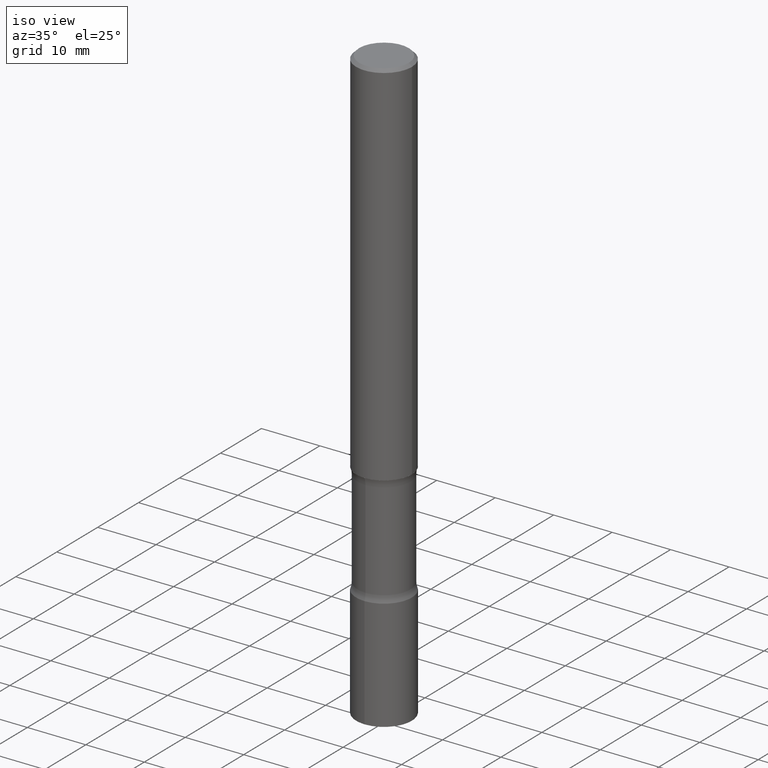
[diagram: clean part render]
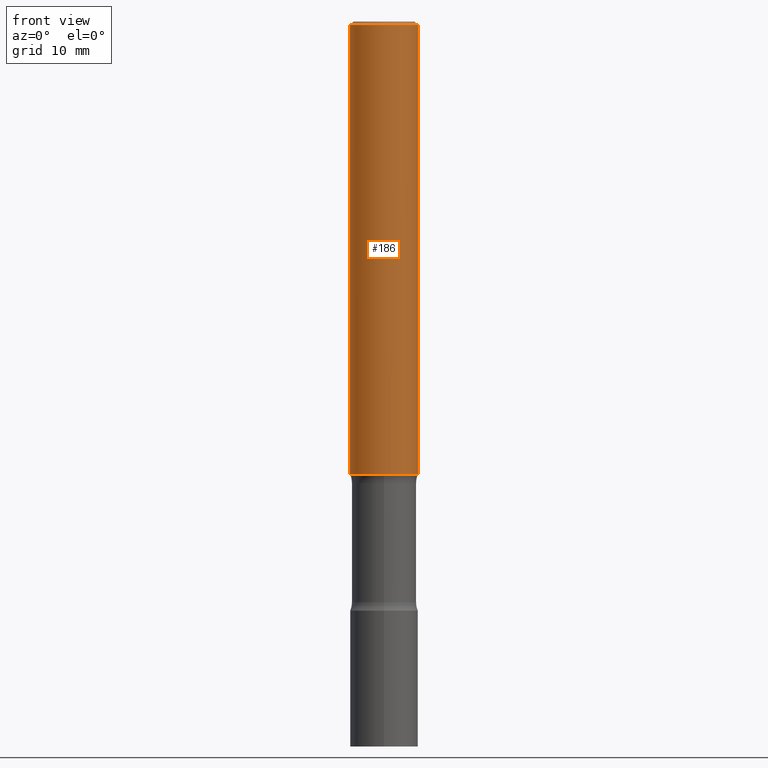
[diagram: tour spotlight — one face highlighted and labeled with its STEP entity id]
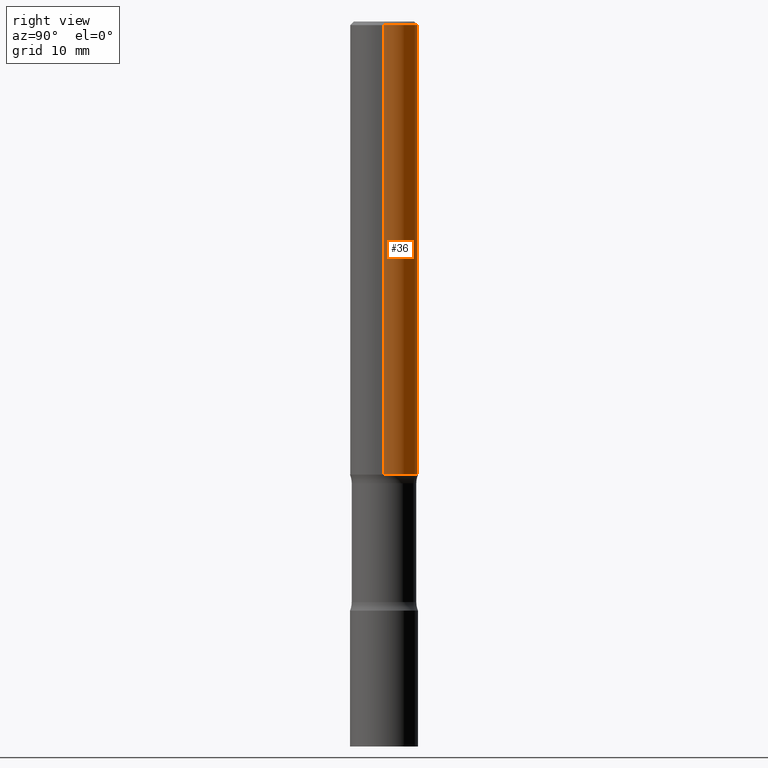
[diagram: tour spotlight — one face highlighted and labeled with its STEP entity id]
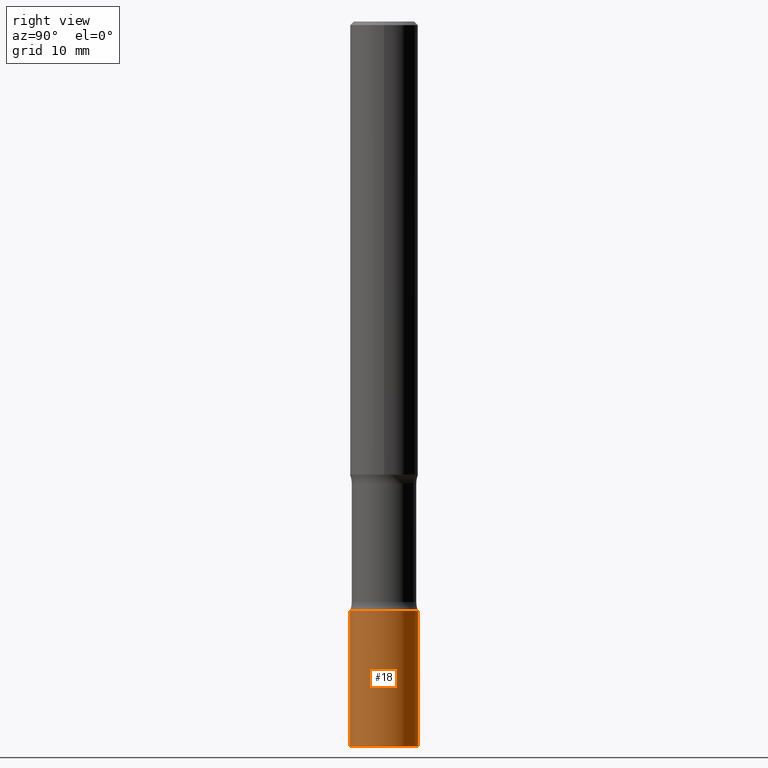
[diagram: tour spotlight — one face highlighted and labeled with its STEP entity id]
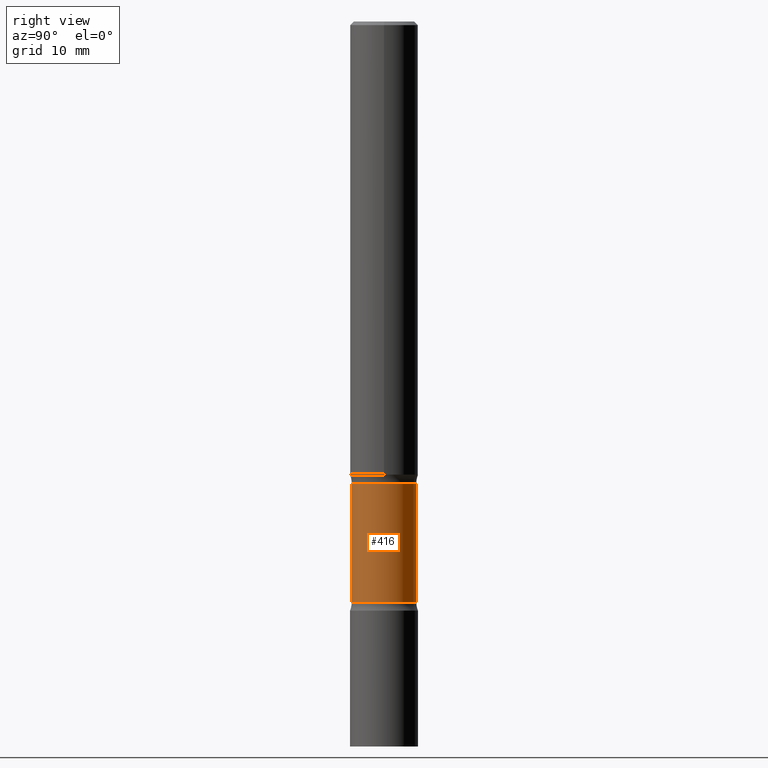
[diagram: tour spotlight — one face highlighted and labeled with its STEP entity id]
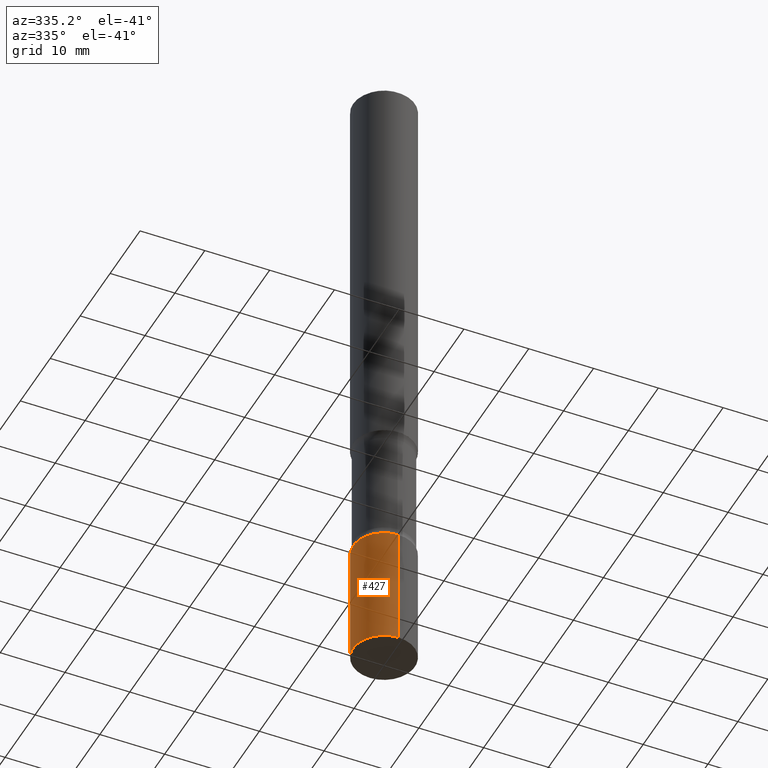
[diagram: tour spotlight — one face highlighted and labeled with its STEP entity id]
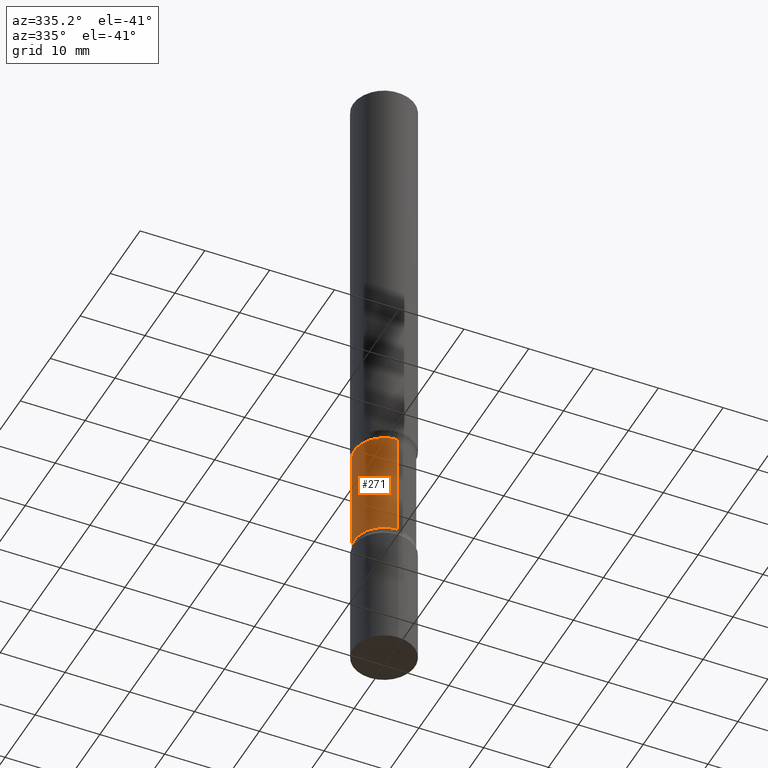
[diagram: tour spotlight — one face highlighted and labeled with its STEP entity id]
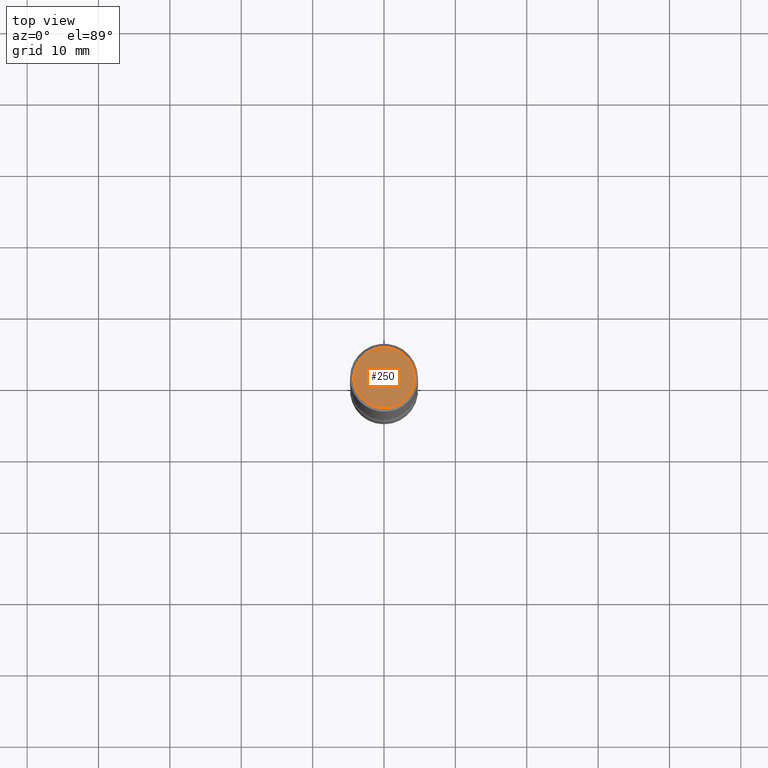
[diagram: tour spotlight — one face highlighted and labeled with its STEP entity id]
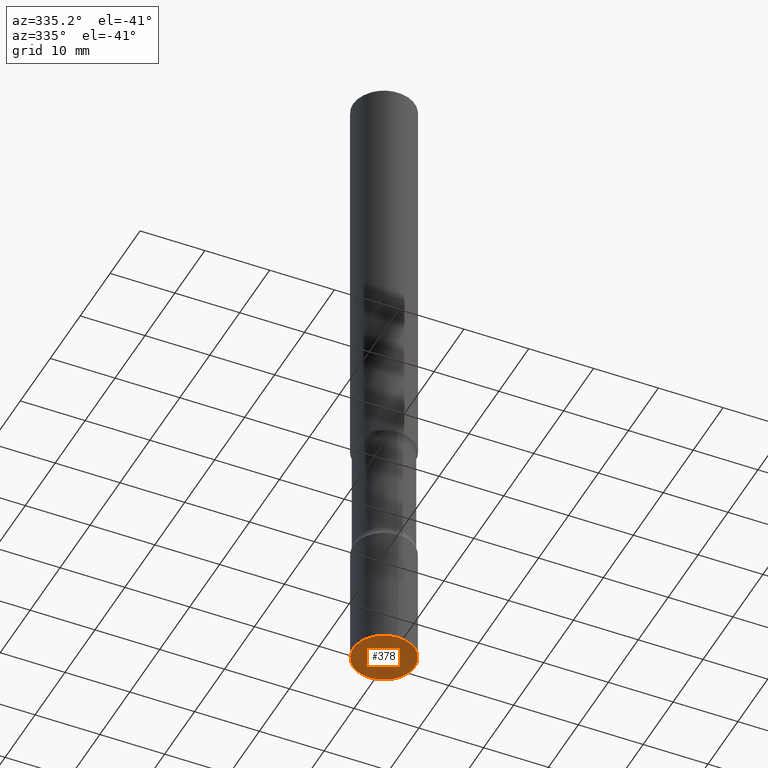
[diagram: tour spotlight — one face highlighted and labeled with its STEP entity id]
A machine part: a face-by-face anatomy tour. The part has 18 B-rep faces; the first image is the clean iso view, then the 8 largest visible faces are spotlighted one at a time (largest first), each with its STEP entity span.

Face 1 — front view, entity #186. In plain terms, the highlighted cylindrical surface (edge-blend (fillet) strip) has radius 4.7625 mm, axis along (-0, 0, 1).
Definition (entity closure, byte-faithful):
#9 = VERTEX_POINT ( 'NONE', #383 ) ;
#15 = ORIENTED_EDGE ( 'NONE', *, *, #421, .T. ) ;
#26 = ORIENTED_EDGE ( 'NONE', *, *, #214, .F. ) ;
#41 = CARTESIAN_POINT ( 'NONE',  ( 0.000000000000000000, 0.000000000000000000, 0.000000000000000000 ) ) ;
#56 = EDGE_CURVE ( 'NONE', #246, #121, #322, .T. ) ;
#58 = CARTESIAN_POINT ( 'NONE',  ( 0.1874999999999999167, -1.309305502066174219E-15, 9.142831454617375408E-30 ) ) ;
#75 = CYLINDRICAL_SURFACE ( 'NONE', #99, 0.1874999999999999167 ) ;
#99 = AXIS2_PLACEMENT_3D ( 'NONE', #41, #137, #441 ) ;
#105 = VECTOR ( 'NONE', #132, 39.37007874015748143 ) ;
#118 = CARTESIAN_POINT ( 'NONE',  ( -0.1874999999999999167, 1.332267629550187257E-15, -9.223003294227943787E-30 ) ) ;
#121 = VERTEX_POINT ( 'NONE', #457 ) ;
#132 = DIRECTION ( 'NONE',  ( -2.445468806185136877E-29, 3.491481338843145188E-15, 1.000000000000000000 ) ) ;
#137 = DIRECTION ( 'NONE',  ( -2.445468806185136597E-29, 3.491481338843145583E-15, 1.000000000000000000 ) ) ;
#142 = DIRECTION ( 'NONE',  ( -2.445468806185136597E-29, 3.491481338843145583E-15, 1.000000000000000000 ) ) ;
#159 = DIRECTION ( 'NONE',  ( -2.445468806185136597E-29, 3.491481338843145583E-15, 1.000000000000000000 ) ) ;
#170 = LINE ( 'NONE', #58, #105 ) ;
#186 = ADVANCED_FACE ( 'NONE', ( #259 ), #75, .T. ) ;
#193 = ORIENTED_EDGE ( 'NONE', *, *, #266, .F. ) ;
#205 = ORIENTED_EDGE ( 'NONE', *, *, #56, .T. ) ;
#214 = EDGE_CURVE ( 'NONE', #9, #476, #480, .T. ) ;
#231 = DIRECTION ( 'NONE',  ( 1.000000000000000000, -6.982962677686266711E-15, 0.000000000000000000 ) ) ;
#246 = VERTEX_POINT ( 'NONE', #382 ) ;
#253 = EDGE_LOOP ( 'NONE', ( #193, #205, #15, #26 ) ) ;
#259 = FACE_OUTER_BOUND ( 'NONE', #253, .T. ) ;
#266 = EDGE_CURVE ( 'NONE', #246, #9, #343, .T. ) ;
#311 = DIRECTION ( 'NONE',  ( -2.445468806185136877E-29, 3.491481338843145188E-15, 1.000000000000000000 ) ) ;
#322 = CIRCLE ( 'NONE', #344, 0.1875000000000000278 ) ;
#343 = LINE ( 'NONE', #118, #393 ) ;
#344 = AXIS2_PLACEMENT_3D ( 'NONE', #369, #142, #491 ) ;
#359 = CARTESIAN_POINT ( 'NONE',  ( 0.1874999999999998057, -1.356173001359023691E-15, -0.02000000000000000042 ) ) ;
#369 = CARTESIAN_POINT ( 'NONE',  ( 6.113672015462842613E-29, -8.728703347107864943E-15, -2.500000000000000000 ) ) ;
#375 = AXIS2_PLACEMENT_3D ( 'NONE', #388, #159, #231 ) ;
#382 = CARTESIAN_POINT ( 'NONE',  ( -0.1874999999999999722, -3.066998857392173905E-15, -2.500000000000000000 ) ) ;
#383 = CARTESIAN_POINT ( 'NONE',  ( -0.1874999999999998057, 1.239475875289310724E-15, -0.02000000000000000042 ) ) ;
#388 = CARTESIAN_POINT ( 'NONE',  ( 4.890937612370273159E-31, -6.982962677686291609E-17, -0.02000000000000000042 ) ) ;
#393 = VECTOR ( 'NONE', #311, 39.37007874015748143 ) ;
#421 = EDGE_CURVE ( 'NONE', #121, #476, #170, .T. ) ;
#441 = DIRECTION ( 'NONE',  ( 1.000000000000000000, -6.982962677686265922E-15, 4.876176775795935793E-29 ) ) ;
#457 = CARTESIAN_POINT ( 'NONE',  ( 0.1875000000000000278, -1.003800884917403995E-14, -2.500000000000000000 ) ) ;
#476 = VERTEX_POINT ( 'NONE', #359 ) ;
#480 = CIRCLE ( 'NONE', #375, 0.1874999999999998057 ) ;
#491 = DIRECTION ( 'NONE',  ( 1.000000000000000000, -6.982962677686266711E-15, 0.000000000000000000 ) ) ;

Face 2 — right view, entity #36. In plain terms, the highlighted cylindrical surface (edge-blend (fillet) strip) has radius 4.7625 mm, axis along (-0, 0, 1).
Definition (entity closure, byte-faithful):
#9 = VERTEX_POINT ( 'NONE', #383 ) ;
#16 = AXIS2_PLACEMENT_3D ( 'NONE', #223, #449, #39 ) ;
#36 = ADVANCED_FACE ( 'NONE', ( #286 ), #292, .T. ) ;
#39 = DIRECTION ( 'NONE',  ( 1.000000000000000000, -6.982962677686266711E-15, 0.000000000000000000 ) ) ;
#58 = CARTESIAN_POINT ( 'NONE',  ( 0.1874999999999999167, -1.309305502066174219E-15, 9.142831454617375408E-30 ) ) ;
#84 = ORIENTED_EDGE ( 'NONE', *, *, #266, .T. ) ;
#89 = DIRECTION ( 'NONE',  ( -2.445468806185136597E-29, 3.491481338843145583E-15, 1.000000000000000000 ) ) ;
#94 = EDGE_LOOP ( 'NONE', ( #317, #84, #172, #131 ) ) ;
#105 = VECTOR ( 'NONE', #132, 39.37007874015748143 ) ;
#118 = CARTESIAN_POINT ( 'NONE',  ( -0.1874999999999999167, 1.332267629550187257E-15, -9.223003294227943787E-30 ) ) ;
#121 = VERTEX_POINT ( 'NONE', #457 ) ;
#126 = CIRCLE ( 'NONE', #16, 0.1874999999999998057 ) ;
#131 = ORIENTED_EDGE ( 'NONE', *, *, #421, .F. ) ;
#132 = DIRECTION ( 'NONE',  ( -2.445468806185136877E-29, 3.491481338843145188E-15, 1.000000000000000000 ) ) ;
#161 = EDGE_CURVE ( 'NONE', #476, #9, #126, .T. ) ;
#170 = LINE ( 'NONE', #58, #105 ) ;
#172 = ORIENTED_EDGE ( 'NONE', *, *, #161, .F. ) ;
#176 = DIRECTION ( 'NONE',  ( -2.445468806185136597E-29, 3.491481338843145583E-15, 1.000000000000000000 ) ) ;
#177 = CIRCLE ( 'NONE', #242, 0.1875000000000000278 ) ;
#223 = CARTESIAN_POINT ( 'NONE',  ( 4.890937612370273159E-31, -6.982962677686291609E-17, -0.02000000000000000042 ) ) ;
#240 = DIRECTION ( 'NONE',  ( 1.000000000000000000, -6.982962677686266711E-15, 0.000000000000000000 ) ) ;
#242 = AXIS2_PLACEMENT_3D ( 'NONE', #319, #89, #240 ) ;
#246 = VERTEX_POINT ( 'NONE', #382 ) ;
#266 = EDGE_CURVE ( 'NONE', #246, #9, #343, .T. ) ;
#286 = FACE_OUTER_BOUND ( 'NONE', #94, .T. ) ;
#292 = CYLINDRICAL_SURFACE ( 'NONE', #461, 0.1874999999999999167 ) ;
#311 = DIRECTION ( 'NONE',  ( -2.445468806185136877E-29, 3.491481338843145188E-15, 1.000000000000000000 ) ) ;
#317 = ORIENTED_EDGE ( 'NONE', *, *, #475, .T. ) ;
#319 = CARTESIAN_POINT ( 'NONE',  ( 6.113672015462842613E-29, -8.728703347107864943E-15, -2.500000000000000000 ) ) ;
#343 = LINE ( 'NONE', #118, #393 ) ;
#359 = CARTESIAN_POINT ( 'NONE',  ( 0.1874999999999998057, -1.356173001359023691E-15, -0.02000000000000000042 ) ) ;
#371 = CARTESIAN_POINT ( 'NONE',  ( 0.000000000000000000, 0.000000000000000000, 0.000000000000000000 ) ) ;
#382 = CARTESIAN_POINT ( 'NONE',  ( -0.1874999999999999722, -3.066998857392173905E-15, -2.500000000000000000 ) ) ;
#383 = CARTESIAN_POINT ( 'NONE',  ( -0.1874999999999998057, 1.239475875289310724E-15, -0.02000000000000000042 ) ) ;
#393 = VECTOR ( 'NONE', #311, 39.37007874015748143 ) ;
#421 = EDGE_CURVE ( 'NONE', #121, #476, #170, .T. ) ;
#449 = DIRECTION ( 'NONE',  ( -2.445468806185136597E-29, 3.491481338843145583E-15, 1.000000000000000000 ) ) ;
#457 = CARTESIAN_POINT ( 'NONE',  ( 0.1875000000000000278, -1.003800884917403995E-14, -2.500000000000000000 ) ) ;
#461 = AXIS2_PLACEMENT_3D ( 'NONE', #371, #176, #495 ) ;
#475 = EDGE_CURVE ( 'NONE', #121, #246, #177, .T. ) ;
#476 = VERTEX_POINT ( 'NONE', #359 ) ;
#495 = DIRECTION ( 'NONE',  ( 1.000000000000000000, -6.982962677686265922E-15, 4.876176775795935793E-29 ) ) ;

Face 3 — right view, entity #18. In plain terms, the highlighted cylindrical surface (edge-blend (fillet) strip) has radius 4.7625 mm, axis along (-0, 0, 1).
Definition (entity closure, byte-faithful):
#11 = DIRECTION ( 'NONE',  ( -2.445454306341708885E-29, 3.491502103444214095E-15, 1.000000000000000000 ) ) ;
#18 = ADVANCED_FACE ( 'NONE', ( #467 ), #182, .T. ) ;
#40 = CIRCLE ( 'NONE', #283, 0.1875000000000000555 ) ;
#60 = VERTEX_POINT ( 'NONE', #100 ) ;
#97 = DIRECTION ( 'NONE',  ( -6.982962677686265922E-15, -1.000000000000000000, 2.913971193241880372E-15 ) ) ;
#100 = CARTESIAN_POINT ( 'NONE',  ( 1.332267629550276595E-15, 0.1874999999999860389, -4.000000000000000888 ) ) ;
#101 = LINE ( 'NONE', #403, #178 ) ;
#107 = EDGE_CURVE ( 'NONE', #363, #248, #101, .T. ) ;
#109 = DIRECTION ( 'NONE',  ( -6.982962677686265922E-15, -1.000000000000000000, 3.491502103444214095E-15 ) ) ;
#127 = CARTESIAN_POINT ( 'NONE',  ( 9.781817225366835538E-29, -1.396600841377685480E-14, -4.000000000000000000 ) ) ;
#134 = ORIENTED_EDGE ( 'NONE', *, *, #171, .T. ) ;
#143 = ORIENTED_EDGE ( 'NONE', *, *, #336, .T. ) ;
#149 = CARTESIAN_POINT ( 'NONE',  ( 0.000000000000000000, 0.000000000000000000, 0.000000000000000000 ) ) ;
#160 = DIRECTION ( 'NONE',  ( -6.982962677686265922E-15, -1.000000000000000000, 2.913971193241879977E-15 ) ) ;
#165 = CARTESIAN_POINT ( 'NONE',  ( -1.309305502066077189E-15, -0.1875000000000139888, -3.999999999999999556 ) ) ;
#171 = EDGE_CURVE ( 'NONE', #60, #426, #503, .T. ) ;
#178 = VECTOR ( 'NONE', #376, 39.37007874015748143 ) ;
#182 = CYLINDRICAL_SURFACE ( 'NONE', #302, 0.1875000000000000555 ) ;
#185 = CARTESIAN_POINT ( 'NONE',  ( 1.332267629550188046E-15, 0.1875000000000000555, -6.546566443957903155E-16 ) ) ;
#198 = VECTOR ( 'NONE', #217, 39.37007874015748143 ) ;
#217 = DIRECTION ( 'NONE',  ( -2.445454306341709165E-29, 3.491502103444214490E-15, 1.000000000000000000 ) ) ;
#222 = DIRECTION ( 'NONE',  ( -2.445454306341708885E-29, 3.491502103444214095E-15, 1.000000000000000000 ) ) ;
#232 = EDGE_CURVE ( 'NONE', #248, #426, #40, .T. ) ;
#248 = VERTEX_POINT ( 'NONE', #262 ) ;
#262 = CARTESIAN_POINT ( 'NONE',  ( -1.309305502066095728E-15, -0.1875000000000113798, -3.249999999999999556 ) ) ;
#283 = AXIS2_PLACEMENT_3D ( 'NONE', #307, #419, #160 ) ;
#302 = AXIS2_PLACEMENT_3D ( 'NONE', #149, #222, #109 ) ;
#307 = CARTESIAN_POINT ( 'NONE',  ( 7.947726495610553875E-29, -1.134738183619369709E-14, -3.250000000000000000 ) ) ;
#316 = CARTESIAN_POINT ( 'NONE',  ( 1.332267629550285667E-15, 0.1874999999999887035, -3.250000000000000444 ) ) ;
#323 = AXIS2_PLACEMENT_3D ( 'NONE', #127, #11, #97 ) ;
#336 = EDGE_CURVE ( 'NONE', #363, #60, #358, .T. ) ;
#358 = CIRCLE ( 'NONE', #323, 0.1875000000000000278 ) ;
#363 = VERTEX_POINT ( 'NONE', #165 ) ;
#376 = DIRECTION ( 'NONE',  ( -2.445454306341709165E-29, 3.491502103444214490E-15, 1.000000000000000000 ) ) ;
#399 = EDGE_LOOP ( 'NONE', ( #143, #134, #502, #496 ) ) ;
#403 = CARTESIAN_POINT ( 'NONE',  ( -1.309305502066175205E-15, -0.1875000000000000555, 6.546566443957903155E-16 ) ) ;
#419 = DIRECTION ( 'NONE',  ( -2.445454306341708885E-29, 3.491502103444214095E-15, 1.000000000000000000 ) ) ;
#426 = VERTEX_POINT ( 'NONE', #316 ) ;
#467 = FACE_OUTER_BOUND ( 'NONE', #399, .T. ) ;
#496 = ORIENTED_EDGE ( 'NONE', *, *, #107, .F. ) ;
#502 = ORIENTED_EDGE ( 'NONE', *, *, #232, .F. ) ;
#503 = LINE ( 'NONE', #185, #198 ) ;

Face 4 — right view, entity #416. In plain terms, the highlighted cylindrical surface (edge-blend (fillet) strip) has radius 4.5244 mm, axis along (0, -0, -1).
Definition (entity closure, byte-faithful):
#2 = ORIENTED_EDGE ( 'NONE', *, *, #37, .T. ) ;
#20 = DIRECTION ( 'NONE',  ( 2.572503713933696930E-29, -3.309560120569282320E-15, -1.000000000000000000 ) ) ;
#24 = CARTESIAN_POINT ( 'NONE',  ( 9.877104281060825871E-29, -1.382955192662065686E-14, -4.000000000000000000 ) ) ;
#37 = EDGE_CURVE ( 'NONE', #435, #66, #274, .T. ) ;
#54 = VECTOR ( 'NONE', #212, 39.37007874015748143 ) ;
#64 = CARTESIAN_POINT ( 'NONE',  ( -1.222026205852955807E-15, -0.1781250000000139389, -3.999999999999999556 ) ) ;
#66 = VERTEX_POINT ( 'NONE', #258 ) ;
#72 = CARTESIAN_POINT ( 'NONE',  ( 6.140532058385174757E-29, -9.022402242516065970E-15, -2.547495887979908780 ) ) ;
#86 = ORIENTED_EDGE ( 'NONE', *, *, #469, .F. ) ;
#130 = CARTESIAN_POINT ( 'NONE',  ( 7.825543147385660996E-29, -1.119019133944436529E-14, -3.202504112020091664 ) ) ;
#167 = CYLINDRICAL_SURFACE ( 'NONE', #352, 0.1781250000000000888 ) ;
#173 = DIRECTION ( 'NONE',  ( 6.982962677686265133E-15, 1.000000000000000000, -3.067338098149346722E-15 ) ) ;
#194 = EDGE_CURVE ( 'NONE', #66, #357, #249, .T. ) ;
#208 = CARTESIAN_POINT ( 'NONE',  ( 1.243840226962945341E-15, 0.1781249999999889311, -3.202504112020092553 ) ) ;
#212 = DIRECTION ( 'NONE',  ( 2.572503713933696930E-29, -3.309560120569282320E-15, -1.000000000000000000 ) ) ;
#238 = ORIENTED_EDGE ( 'NONE', *, *, #194, .T. ) ;
#249 = LINE ( 'NONE', #64, #54 ) ;
#258 = CARTESIAN_POINT ( 'NONE',  ( -1.254184790217548239E-15, -0.1781250000000090816, -2.547495887979908336 ) ) ;
#263 = CIRCLE ( 'NONE', #385, 0.1781250000000001443 ) ;
#274 = CIRCLE ( 'NONE', #312, 0.1781250000000000611 ) ;
#277 = EDGE_LOOP ( 'NONE', ( #2, #238, #86, #347 ) ) ;
#298 = DIRECTION ( 'NONE',  ( 6.982962677686265133E-15, 1.000000000000000000, -3.067338098149347116E-15 ) ) ;
#312 = AXIS2_PLACEMENT_3D ( 'NONE', #72, #487, #298 ) ;
#318 = DIRECTION ( 'NONE',  ( 6.982962677686265133E-15, 1.000000000000000000, -3.067338098149345539E-15 ) ) ;
#335 = EDGE_CURVE ( 'NONE', #435, #442, #341, .T. ) ;
#341 = LINE ( 'NONE', #428, #462 ) ;
#347 = ORIENTED_EDGE ( 'NONE', *, *, #335, .F. ) ;
#352 = AXIS2_PLACEMENT_3D ( 'NONE', #24, #473, #173 ) ;
#354 = CARTESIAN_POINT ( 'NONE',  ( -1.254184790217529701E-15, -0.1781250000000113298, -3.202504112020091220 ) ) ;
#356 = CARTESIAN_POINT ( 'NONE',  ( 1.243840226962927986E-15, 0.1781249999999910405, -2.547495887979909224 ) ) ;
#357 = VERTEX_POINT ( 'NONE', #354 ) ;
#385 = AXIS2_PLACEMENT_3D ( 'NONE', #130, #437, #318 ) ;
#398 = FACE_OUTER_BOUND ( 'NONE', #277, .T. ) ;
#416 = ADVANCED_FACE ( 'NONE', ( #398 ), #167, .T. ) ;
#428 = CARTESIAN_POINT ( 'NONE',  ( 1.243840226962965457E-15, 0.1781249999999862665, -4.000000000000000888 ) ) ;
#435 = VERTEX_POINT ( 'NONE', #356 ) ;
#437 = DIRECTION ( 'NONE',  ( 2.572503713933696930E-29, -3.309560120569282320E-15, -1.000000000000000000 ) ) ;
#442 = VERTEX_POINT ( 'NONE', #208 ) ;
#462 = VECTOR ( 'NONE', #20, 39.37007874015748143 ) ;
#469 = EDGE_CURVE ( 'NONE', #442, #357, #263, .T. ) ;
#473 = DIRECTION ( 'NONE',  ( 2.572503713933696930E-29, -3.309560120569282320E-15, -1.000000000000000000 ) ) ;
#487 = DIRECTION ( 'NONE',  ( 2.572503713933696930E-29, -3.309560120569282320E-15, -1.000000000000000000 ) ) ;

Face 5 — auxiliary view, entity #427. In plain terms, the highlighted cylindrical surface (edge-blend (fillet) strip) has radius 4.7625 mm, axis along (-0, 0, 1).
Definition (entity closure, byte-faithful):
#10 = ORIENTED_EDGE ( 'NONE', *, *, #300, .F. ) ;
#22 = CIRCLE ( 'NONE', #157, 0.1875000000000000555 ) ;
#60 = VERTEX_POINT ( 'NONE', #100 ) ;
#69 = ORIENTED_EDGE ( 'NONE', *, *, #171, .F. ) ;
#100 = CARTESIAN_POINT ( 'NONE',  ( 1.332267629550276595E-15, 0.1874999999999860389, -4.000000000000000888 ) ) ;
#101 = LINE ( 'NONE', #403, #178 ) ;
#107 = EDGE_CURVE ( 'NONE', #363, #248, #101, .T. ) ;
#116 = DIRECTION ( 'NONE',  ( -6.982962677686265922E-15, -1.000000000000000000, 2.913971193241879977E-15 ) ) ;
#124 = DIRECTION ( 'NONE',  ( -2.445454306341708885E-29, 3.491502103444214095E-15, 1.000000000000000000 ) ) ;
#125 = EDGE_CURVE ( 'NONE', #60, #363, #315, .T. ) ;
#136 = AXIS2_PLACEMENT_3D ( 'NONE', #409, #180, #400 ) ;
#157 = AXIS2_PLACEMENT_3D ( 'NONE', #466, #346, #116 ) ;
#165 = CARTESIAN_POINT ( 'NONE',  ( -1.309305502066077189E-15, -0.1875000000000139888, -3.999999999999999556 ) ) ;
#171 = EDGE_CURVE ( 'NONE', #60, #426, #503, .T. ) ;
#178 = VECTOR ( 'NONE', #376, 39.37007874015748143 ) ;
#180 = DIRECTION ( 'NONE',  ( -2.445454306341708885E-29, 3.491502103444214095E-15, 1.000000000000000000 ) ) ;
#185 = CARTESIAN_POINT ( 'NONE',  ( 1.332267629550188046E-15, 0.1875000000000000555, -6.546566443957903155E-16 ) ) ;
#198 = VECTOR ( 'NONE', #217, 39.37007874015748143 ) ;
#204 = CARTESIAN_POINT ( 'NONE',  ( 0.000000000000000000, 0.000000000000000000, 0.000000000000000000 ) ) ;
#217 = DIRECTION ( 'NONE',  ( -2.445454306341709165E-29, 3.491502103444214490E-15, 1.000000000000000000 ) ) ;
#248 = VERTEX_POINT ( 'NONE', #262 ) ;
#262 = CARTESIAN_POINT ( 'NONE',  ( -1.309305502066095728E-15, -0.1875000000000113798, -3.249999999999999556 ) ) ;
#281 = DIRECTION ( 'NONE',  ( -6.982962677686265922E-15, -1.000000000000000000, 3.491502103444214095E-15 ) ) ;
#300 = EDGE_CURVE ( 'NONE', #426, #248, #22, .T. ) ;
#315 = CIRCLE ( 'NONE', #136, 0.1875000000000000278 ) ;
#316 = CARTESIAN_POINT ( 'NONE',  ( 1.332267629550285667E-15, 0.1874999999999887035, -3.250000000000000444 ) ) ;
#325 = CYLINDRICAL_SURFACE ( 'NONE', #488, 0.1875000000000000555 ) ;
#330 = ORIENTED_EDGE ( 'NONE', *, *, #125, .T. ) ;
#342 = ORIENTED_EDGE ( 'NONE', *, *, #107, .T. ) ;
#346 = DIRECTION ( 'NONE',  ( -2.445454306341708885E-29, 3.491502103444214095E-15, 1.000000000000000000 ) ) ;
#363 = VERTEX_POINT ( 'NONE', #165 ) ;
#376 = DIRECTION ( 'NONE',  ( -2.445454306341709165E-29, 3.491502103444214490E-15, 1.000000000000000000 ) ) ;
#400 = DIRECTION ( 'NONE',  ( -6.982962677686265922E-15, -1.000000000000000000, 2.913971193241880372E-15 ) ) ;
#403 = CARTESIAN_POINT ( 'NONE',  ( -1.309305502066175205E-15, -0.1875000000000000555, 6.546566443957903155E-16 ) ) ;
#409 = CARTESIAN_POINT ( 'NONE',  ( 9.781817225366835538E-29, -1.396600841377685480E-14, -4.000000000000000000 ) ) ;
#424 = FACE_OUTER_BOUND ( 'NONE', #492, .T. ) ;
#426 = VERTEX_POINT ( 'NONE', #316 ) ;
#427 = ADVANCED_FACE ( 'NONE', ( #424 ), #325, .T. ) ;
#466 = CARTESIAN_POINT ( 'NONE',  ( 7.947726495610553875E-29, -1.134738183619369709E-14, -3.250000000000000000 ) ) ;
#488 = AXIS2_PLACEMENT_3D ( 'NONE', #204, #124, #281 ) ;
#492 = EDGE_LOOP ( 'NONE', ( #69, #330, #342, #10 ) ) ;
#503 = LINE ( 'NONE', #185, #198 ) ;

Face 6 — auxiliary view, entity #271. In plain terms, the highlighted cylindrical surface (edge-blend (fillet) strip) has radius 4.5244 mm, axis along (0, -0, -1).
Definition (entity closure, byte-faithful):
#5 = DIRECTION ( 'NONE',  ( 2.572503713933696930E-29, -3.309560120569282320E-15, -1.000000000000000000 ) ) ;
#20 = DIRECTION ( 'NONE',  ( 2.572503713933696930E-29, -3.309560120569282320E-15, -1.000000000000000000 ) ) ;
#30 = AXIS2_PLACEMENT_3D ( 'NONE', #228, #188, #229 ) ;
#54 = VECTOR ( 'NONE', #212, 39.37007874015748143 ) ;
#57 = EDGE_LOOP ( 'NONE', ( #349, #401, #422, #278 ) ) ;
#59 = AXIS2_PLACEMENT_3D ( 'NONE', #340, #5, #305 ) ;
#62 = EDGE_CURVE ( 'NONE', #66, #435, #329, .T. ) ;
#64 = CARTESIAN_POINT ( 'NONE',  ( -1.222026205852955807E-15, -0.1781250000000139389, -3.999999999999999556 ) ) ;
#66 = VERTEX_POINT ( 'NONE', #258 ) ;
#68 = DIRECTION ( 'NONE',  ( 6.982962677686265133E-15, 1.000000000000000000, -3.067338098149347116E-15 ) ) ;
#150 = CARTESIAN_POINT ( 'NONE',  ( 6.140532058385174757E-29, -9.022402242516065970E-15, -2.547495887979908780 ) ) ;
#188 = DIRECTION ( 'NONE',  ( 2.572503713933696930E-29, -3.309560120569282320E-15, -1.000000000000000000 ) ) ;
#194 = EDGE_CURVE ( 'NONE', #66, #357, #249, .T. ) ;
#208 = CARTESIAN_POINT ( 'NONE',  ( 1.243840226962945341E-15, 0.1781249999999889311, -3.202504112020092553 ) ) ;
#212 = DIRECTION ( 'NONE',  ( 2.572503713933696930E-29, -3.309560120569282320E-15, -1.000000000000000000 ) ) ;
#228 = CARTESIAN_POINT ( 'NONE',  ( 7.825543147385660996E-29, -1.119019133944436529E-14, -3.202504112020091664 ) ) ;
#229 = DIRECTION ( 'NONE',  ( 6.982962677686265133E-15, 1.000000000000000000, -3.067338098149345539E-15 ) ) ;
#249 = LINE ( 'NONE', #64, #54 ) ;
#258 = CARTESIAN_POINT ( 'NONE',  ( -1.254184790217548239E-15, -0.1781250000000090816, -2.547495887979908336 ) ) ;
#271 = ADVANCED_FACE ( 'NONE', ( #384 ), #418, .T. ) ;
#278 = ORIENTED_EDGE ( 'NONE', *, *, #332, .F. ) ;
#305 = DIRECTION ( 'NONE',  ( 6.982962677686265133E-15, 1.000000000000000000, -3.067338098149346722E-15 ) ) ;
#329 = CIRCLE ( 'NONE', #394, 0.1781250000000000611 ) ;
#332 = EDGE_CURVE ( 'NONE', #357, #442, #338, .T. ) ;
#335 = EDGE_CURVE ( 'NONE', #435, #442, #341, .T. ) ;
#338 = CIRCLE ( 'NONE', #30, 0.1781250000000001443 ) ;
#340 = CARTESIAN_POINT ( 'NONE',  ( 9.877104281060825871E-29, -1.382955192662065686E-14, -4.000000000000000000 ) ) ;
#341 = LINE ( 'NONE', #428, #462 ) ;
#349 = ORIENTED_EDGE ( 'NONE', *, *, #194, .F. ) ;
#354 = CARTESIAN_POINT ( 'NONE',  ( -1.254184790217529701E-15, -0.1781250000000113298, -3.202504112020091220 ) ) ;
#356 = CARTESIAN_POINT ( 'NONE',  ( 1.243840226962927986E-15, 0.1781249999999910405, -2.547495887979909224 ) ) ;
#357 = VERTEX_POINT ( 'NONE', #354 ) ;
#384 = FACE_OUTER_BOUND ( 'NONE', #57, .T. ) ;
#394 = AXIS2_PLACEMENT_3D ( 'NONE', #150, #411, #68 ) ;
#401 = ORIENTED_EDGE ( 'NONE', *, *, #62, .T. ) ;
#411 = DIRECTION ( 'NONE',  ( 2.572503713933696930E-29, -3.309560120569282320E-15, -1.000000000000000000 ) ) ;
#418 = CYLINDRICAL_SURFACE ( 'NONE', #59, 0.1781250000000000888 ) ;
#422 = ORIENTED_EDGE ( 'NONE', *, *, #335, .T. ) ;
#428 = CARTESIAN_POINT ( 'NONE',  ( 1.243840226962965457E-15, 0.1781249999999862665, -4.000000000000000888 ) ) ;
#435 = VERTEX_POINT ( 'NONE', #356 ) ;
#442 = VERTEX_POINT ( 'NONE', #208 ) ;
#462 = VECTOR ( 'NONE', #20, 39.37007874015748143 ) ;

Face 7 — top view, entity #250. In plain terms, the highlighted planar face has unit normal (0, -0, -1).
Definition (entity closure, byte-faithful):
#7 = CARTESIAN_POINT ( 'NONE',  ( 0.000000000000000000, 0.000000000000000000, 0.000000000000000000 ) ) ;
#25 = VERTEX_POINT ( 'NONE', #110 ) ;
#82 = CARTESIAN_POINT ( 'NONE',  ( 1.169646248512448412E-15, 0.1674999999999998157, -5.848231242562262767E-16 ) ) ;
#85 = PLANE ( 'NONE',  #450 ) ;
#110 = CARTESIAN_POINT ( 'NONE',  ( 0.1674999999999998157, -1.252653207992877105E-15, 8.469775550109232378E-30 ) ) ;
#120 = EDGE_LOOP ( 'NONE', ( #156, #310 ) ) ;
#138 = CIRCLE ( 'NONE', #256, 0.1674999999999998157 ) ;
#154 = CARTESIAN_POINT ( 'NONE',  ( -0.1674999999999998157, 1.204561061900879469E-15, -8.301862719484101980E-30 ) ) ;
#156 = ORIENTED_EDGE ( 'NONE', *, *, #308, .T. ) ;
#164 = CARTESIAN_POINT ( 'NONE',  ( 0.000000000000000000, 0.000000000000000000, 0.000000000000000000 ) ) ;
#199 = AXIS2_PLACEMENT_3D ( 'NONE', #164, #247, #478 ) ;
#235 = DIRECTION ( 'NONE',  ( -1.000000000000000000, 6.982962677686265922E-15, -4.876176775795935793E-29 ) ) ;
#247 = DIRECTION ( 'NONE',  ( -2.445468806185136597E-29, 3.491481338843145583E-15, 1.000000000000000000 ) ) ;
#250 = ADVANCED_FACE ( 'NONE', ( #268 ), #85, .F. ) ;
#256 = AXIS2_PLACEMENT_3D ( 'NONE', #7, #389, #270 ) ;
#268 = FACE_OUTER_BOUND ( 'NONE', #120, .T. ) ;
#270 = DIRECTION ( 'NONE',  ( 1.000000000000000000, -6.982962677686266711E-15, 4.876176775795936914E-29 ) ) ;
#308 = EDGE_CURVE ( 'NONE', #321, #25, #138, .T. ) ;
#310 = ORIENTED_EDGE ( 'NONE', *, *, #360, .T. ) ;
#321 = VERTEX_POINT ( 'NONE', #154 ) ;
#360 = EDGE_CURVE ( 'NONE', #25, #321, #413, .T. ) ;
#389 = DIRECTION ( 'NONE',  ( -2.445468806185136597E-29, 3.491481338843145583E-15, 1.000000000000000000 ) ) ;
#413 = CIRCLE ( 'NONE', #199, 0.1674999999999998157 ) ;
#450 = AXIS2_PLACEMENT_3D ( 'NONE', #82, #470, #235 ) ;
#470 = DIRECTION ( 'NONE',  ( 2.438088387897960049E-29, -3.491481338843145188E-15, -1.000000000000000000 ) ) ;
#478 = DIRECTION ( 'NONE',  ( 1.000000000000000000, -6.982962677686266711E-15, 4.876176775795936914E-29 ) ) ;

Face 8 — auxiliary view, entity #378. In plain terms, the highlighted planar face has unit normal (0, -0, -1).
Definition (entity closure, byte-faithful):
#11 = DIRECTION ( 'NONE',  ( -2.445454306341708885E-29, 3.491502103444214095E-15, 1.000000000000000000 ) ) ;
#53 = PLANE ( 'NONE',  #226 ) ;
#60 = VERTEX_POINT ( 'NONE', #100 ) ;
#97 = DIRECTION ( 'NONE',  ( -6.982962677686265922E-15, -1.000000000000000000, 2.913971193241880372E-15 ) ) ;
#100 = CARTESIAN_POINT ( 'NONE',  ( 1.332267629550276595E-15, 0.1874999999999860389, -4.000000000000000888 ) ) ;
#122 = CARTESIAN_POINT ( 'NONE',  ( 9.781875224740546387E-29, -1.396592535537258233E-14, -4.000000000000000000 ) ) ;
#125 = EDGE_CURVE ( 'NONE', #60, #363, #315, .T. ) ;
#127 = CARTESIAN_POINT ( 'NONE',  ( 9.781817225366835538E-29, -1.396600841377685480E-14, -4.000000000000000000 ) ) ;
#136 = AXIS2_PLACEMENT_3D ( 'NONE', #409, #180, #400 ) ;
#165 = CARTESIAN_POINT ( 'NONE',  ( -1.309305502066077189E-15, -0.1875000000000139888, -3.999999999999999556 ) ) ;
#180 = DIRECTION ( 'NONE',  ( -2.445454306341708885E-29, 3.491502103444214095E-15, 1.000000000000000000 ) ) ;
#215 = ORIENTED_EDGE ( 'NONE', *, *, #336, .F. ) ;
#226 = AXIS2_PLACEMENT_3D ( 'NONE', #122, #432, #395 ) ;
#315 = CIRCLE ( 'NONE', #136, 0.1875000000000000278 ) ;
#323 = AXIS2_PLACEMENT_3D ( 'NONE', #127, #11, #97 ) ;
#336 = EDGE_CURVE ( 'NONE', #363, #60, #358, .T. ) ;
#358 = CIRCLE ( 'NONE', #323, 0.1875000000000000278 ) ;
#363 = VERTEX_POINT ( 'NONE', #165 ) ;
#378 = ADVANCED_FACE ( 'NONE', ( #396 ), #53, .T. ) ;
#395 = DIRECTION ( 'NONE',  ( 6.982962677686265922E-15, 1.000000000000000000, -3.491502103444214490E-15 ) ) ;
#396 = FACE_OUTER_BOUND ( 'NONE', #504, .T. ) ;
#400 = DIRECTION ( 'NONE',  ( -6.982962677686265922E-15, -1.000000000000000000, 2.913971193241880372E-15 ) ) ;
#405 = ORIENTED_EDGE ( 'NONE', *, *, #125, .F. ) ;
#409 = CARTESIAN_POINT ( 'NONE',  ( 9.781817225366835538E-29, -1.396600841377685480E-14, -4.000000000000000000 ) ) ;
#432 = DIRECTION ( 'NONE',  ( 2.445454306341708044E-29, -3.491502103444214490E-15, -1.000000000000000000 ) ) ;
#504 = EDGE_LOOP ( 'NONE', ( #215, #405 ) ) ;